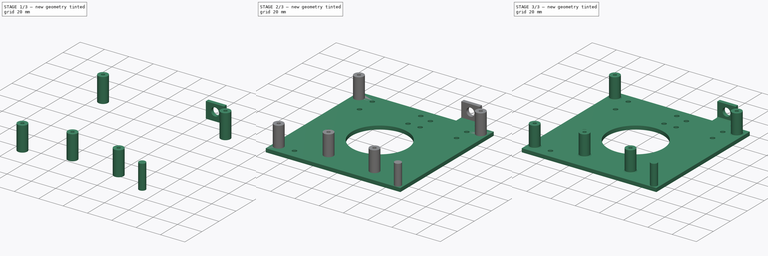
[diagram: build sequence overview — one tinted view per stage of 3, left to right]
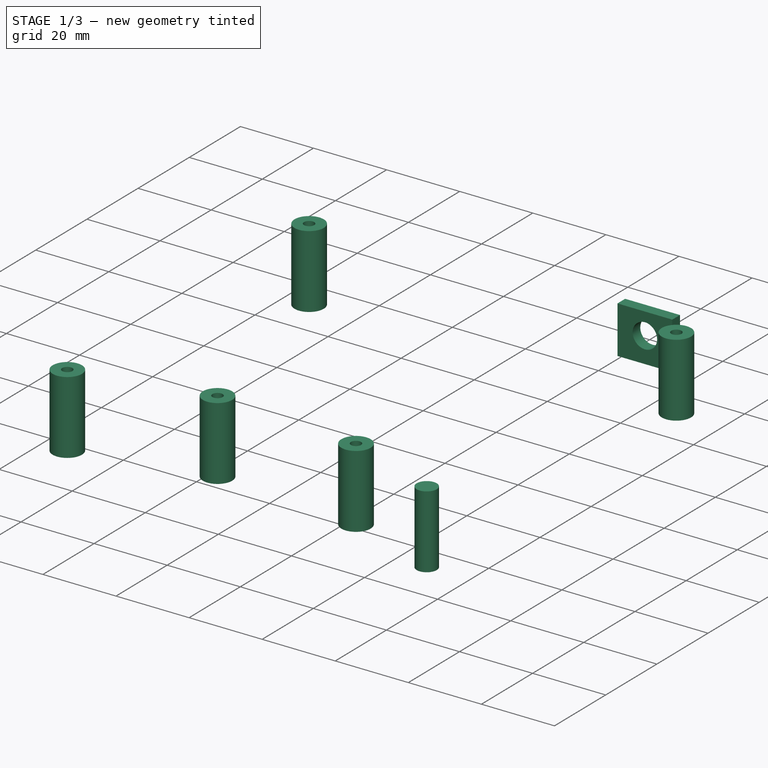
[diagram: stage 1 of 3 — iso view after this stage's code; geometry added in this stage tinted green]
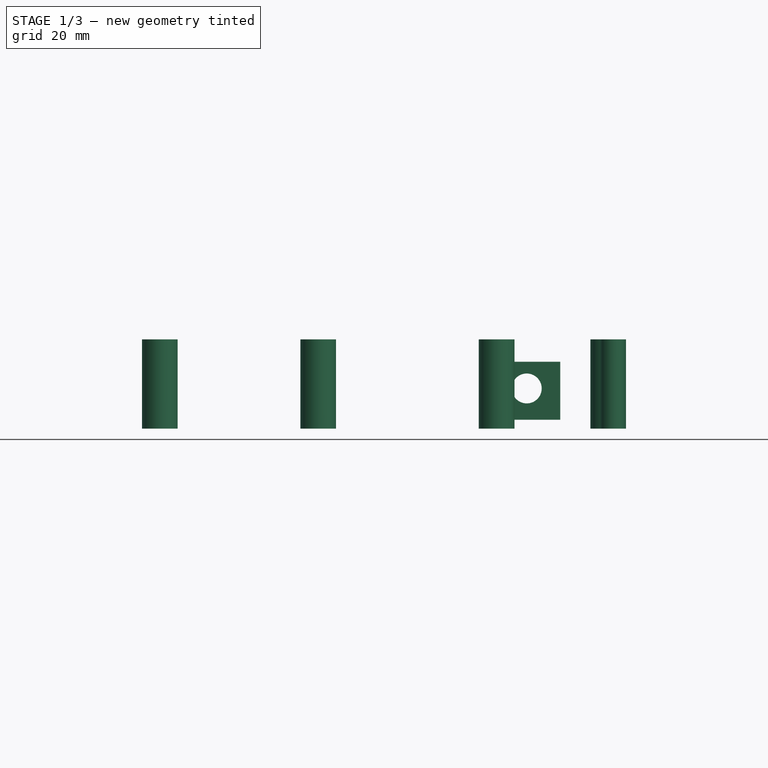
[diagram: stage 1 of 3 — front view after this stage's code; geometry added in this stage tinted green]
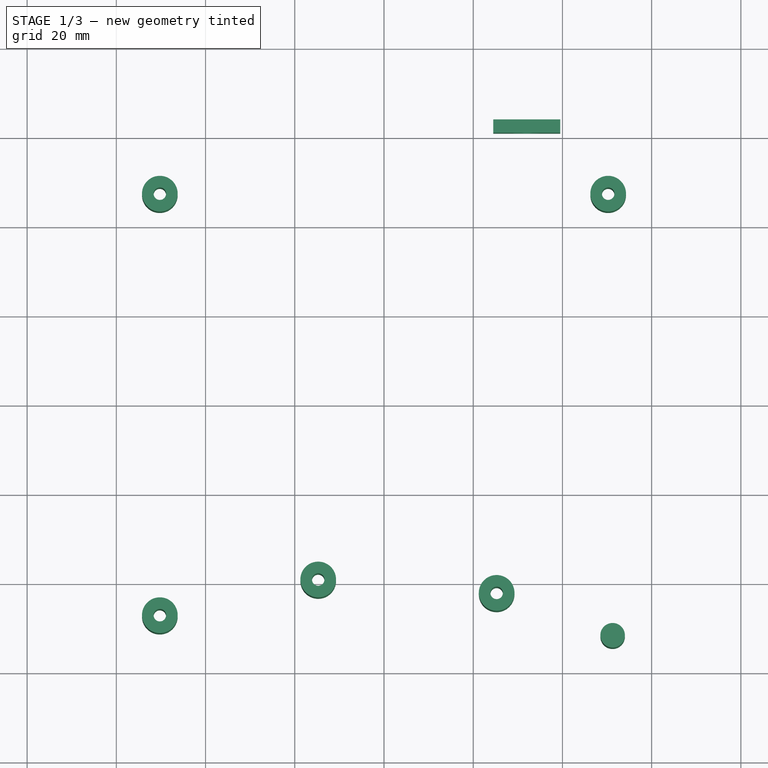
[diagram: stage 1 of 3 — top view after this stage's code; geometry added in this stage tinted green]
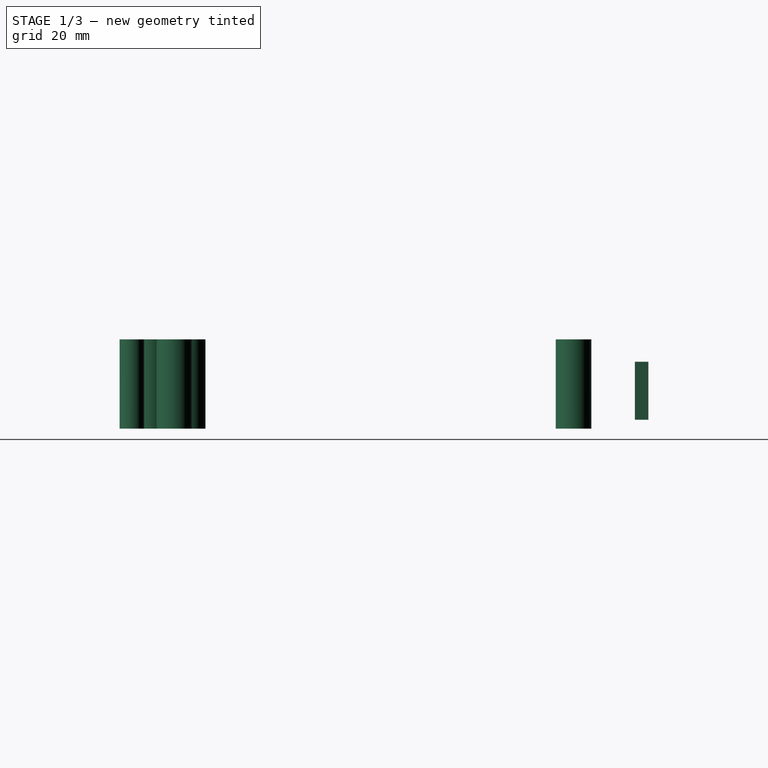
[diagram: stage 1 of 3 — right view after this stage's code; geometry added in this stage tinted green]
FCSTD DOCUMENT  (FreeCAD 0.16R6698 (Git))
Label: colibri-v2-frame-receiver-mnt
License: All rights reserved
LicenseURL: http://en.wikipedia.org/wiki/All_rights_reserved
objects: Sketcher::SketchObject×3, Part::Extrusion×3, Part::MultiFuse×1, Part::Chamfer×1
note: 8 computed .brp shape members not serialized (recipe doc carries the construction recipe); baked Part::Feature solids carry a one-line shape summary decoded from their .brp

FEATURE [Sketcher::SketchObject] Sketch001
  sketch-geometry (16):
    g0: LineSegment [constr] StartX=-50.25 StartY=47.25 StartZ=0 EndX=50.25 EndY=47.25 EndZ=0
    g1: LineSegment [constr] StartX=50.25 StartY=47.25 StartZ=0 EndX=50.25 EndY=-47.25 EndZ=0
    g2: LineSegment [constr] StartX=50.25 StartY=-47.25 StartZ=0 EndX=-50.25 EndY=-47.25 EndZ=0
    g3: LineSegment [constr] StartX=-50.25 StartY=-47.25 StartZ=0 EndX=-50.25 EndY=47.25 EndZ=0
    g4: GeomPoint [constr] X=50.25 Y=-47.25 Z=0
    g5: Circle CenterX=-50.25 CenterY=-47.25 CenterZ=0 NormalX=0 NormalY=0 NormalZ=1 Radius=1.4
    g6: Circle CenterX=50.25 CenterY=47.25 CenterZ=0 NormalX=0 NormalY=0 NormalZ=1 Radius=1.4
    g7: Circle CenterX=-50.25 CenterY=-47.25 CenterZ=0 NormalX=0 NormalY=0 NormalZ=1 Radius=4
    g8: Circle CenterX=50.25 CenterY=47.25 CenterZ=0 NormalX=0 NormalY=0 NormalZ=1 Radius=4
    g9: Circle CenterX=-50.25 CenterY=47.25 CenterZ=0 NormalX=0 NormalY=0 NormalZ=1 Radius=4
    g10: Circle CenterX=-50.25 CenterY=47.25 CenterZ=0 NormalX=0 NormalY=0 NormalZ=1 Radius=1.4
    g11: Circle CenterX=25.25 CenterY=-42.25 CenterZ=0 NormalX=0 NormalY=0 NormalZ=1 Radius=4
    g12: Circle CenterX=25.25 CenterY=-42.25 CenterZ=0 NormalX=0 NormalY=0 NormalZ=1 Radius=1.4
    g13: Circle CenterX=51.25 CenterY=-51.75 CenterZ=0 NormalX=0 NormalY=0 NormalZ=1 Radius=2.75
    g14: Circle CenterX=-14.75 CenterY=-39.25 CenterZ=0 NormalX=0 NormalY=0 NormalZ=1 Radius=4
    g15: Circle CenterX=-14.75 CenterY=-39.25 CenterZ=0 NormalX=0 NormalY=0 NormalZ=1 Radius=1.4
  constraints (39):
    c: Coincident(g0,g1)
    c: Coincident(g1,g2)
    c: Coincident(g3,g0)
    c: Horizontal(g0)
    c: Horizontal(g2)
    c: Vertical(g1)
    c: Vertical(g3)
    c: Symmetric(g0,g0,g-2)
    c: Symmetric(g0,g2,g-1)
    c: DistanceX(g0,g0) = 100.5
    c: PointOnObject(g4,g1)
    c: DistanceY(g4,g0) = 94.5
    c: Coincident(g5,g2)
    c: Coincident(g6,g0)
    c: Coincident(g7,g2)
    c: Coincident(g8,g0)
    c: Coincident(g4,g1)
    c: Coincident(g10,g9)
    c: Radius(g9) = 4
    c: Equal(g9,g8)
    c: Radius(g10) = 1.4
    c: Equal(g10,g6)
    c: Equal(g10,g5)
    c: Coincident(g3,g2)
    c: Coincident(g9,g0)
    c: Equal(g7,g9)
    c: Coincident(g12,g11)
    c: Equal(g12,g10)
    c: Equal(g11,g9)
    c: DistanceY(g2,g11) = 5
    c: DistanceX(g2,g11) = 75.5
    c: Radius(g13) = 2.75
    c: DistanceY(g13,g1) = 4.5
    c: DistanceX(g1,g13) = 1
    c: Coincident(g15,g14)
    c: Equal(g14,g9)
    c: Equal(g15,g10)
    c: DistanceX(g2,g14) = 35.5
    c: DistanceY(g2,g14) = 8
FEATURE [Part::Extrusion] Extrude001
  Base = -> Sketch001
  Dir = (0,0,20)
  Solid = true
FEATURE [Sketcher::SketchObject] Sketch002
  Placement = pos=(0,0,0) rot=(1,0,0;1.5708rad)
  sketch-geometry (7):
    g0: LineSegment StartX=-7.5 StartY=0 StartZ=0 EndX=7.5 EndY=0 EndZ=0
    g1: LineSegment StartX=7.5 StartY=0 StartZ=0 EndX=7.5 EndY=13 EndZ=0
    g2: LineSegment StartX=7.5 StartY=13 StartZ=0 EndX=-7.5 EndY=13 EndZ=0
    g3: LineSegment StartX=-7.5 StartY=13 StartZ=0 EndX=-7.5 EndY=0 EndZ=0
    g4: Circle CenterX=0 CenterY=7 CenterZ=0 NormalX=0 NormalY=0 NormalZ=1 Radius=3.35
    g5: LineSegment [constr] StartX=-7.5 StartY=0 StartZ=0 EndX=0 EndY=7 EndZ=0
    g6: LineSegment [constr] StartX=0 StartY=7 StartZ=0 EndX=7.5 EndY=0 EndZ=0
  constraints (19):
    c: Coincident(g0,g1)
    c: Coincident(g1,g2)
    c: Coincident(g2,g3)
    c: Coincident(g3,g0)
    c: Horizontal(g0)
    c: Horizontal(g2)
    c: Vertical(g1)
    c: Vertical(g3)
    c: PointOnObject(g0,g-1)
    c: DistanceX(g2,g2) = 15
    c: DistanceY(g1,g1) = 13
    c: Radius(g4) = 3.35
    c: Coincident(g0,g5)
    c: Coincident(g5,g4)
    c: Coincident(g5,g6)
    c: Coincident(g6,g0)
    c: Equal(g5,g6)
    c: DistanceY(g0,g4) = 7
    c: PointOnObject(g4,g-2)
FEATURE [Part::Extrusion] Extrude002
  Base = -> Sketch002
  Dir = (0,3,0)
  Placement = pos=(32,61,2) rot=(0,0,1;0rad)
  Solid = true
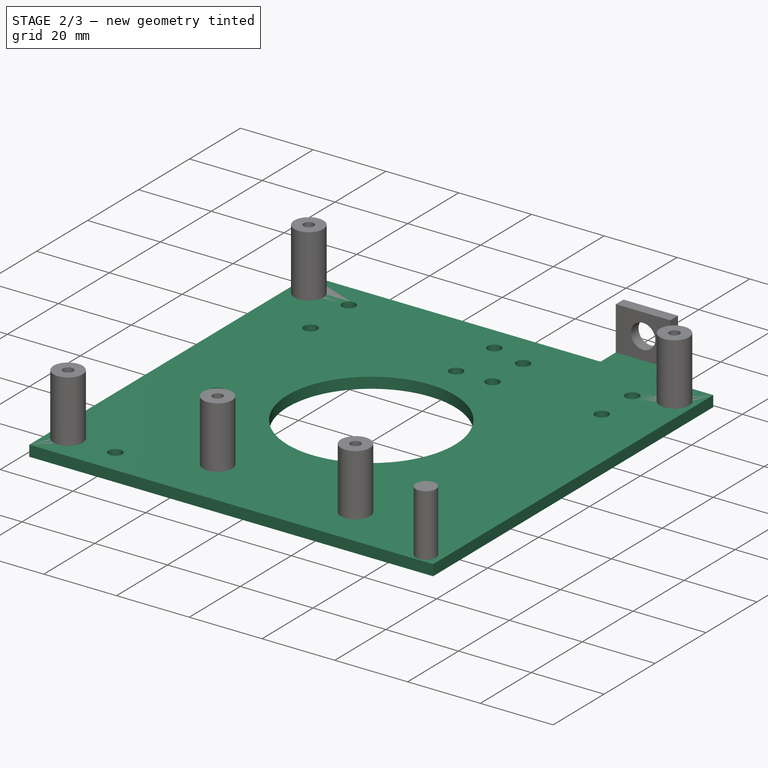
[diagram: stage 2 of 3 — iso view after this stage's code; geometry added in this stage tinted green]
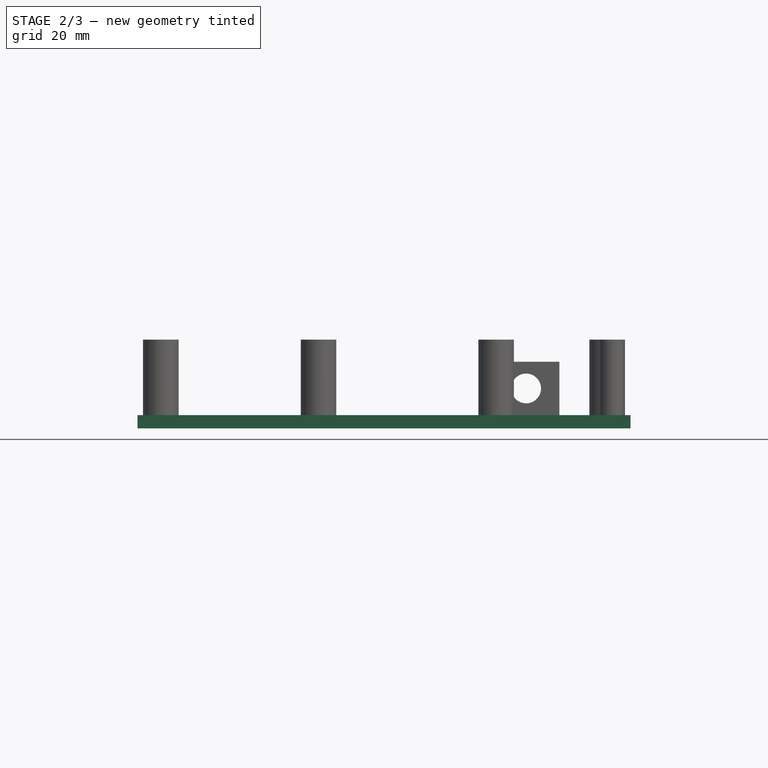
[diagram: stage 2 of 3 — front view after this stage's code; geometry added in this stage tinted green]
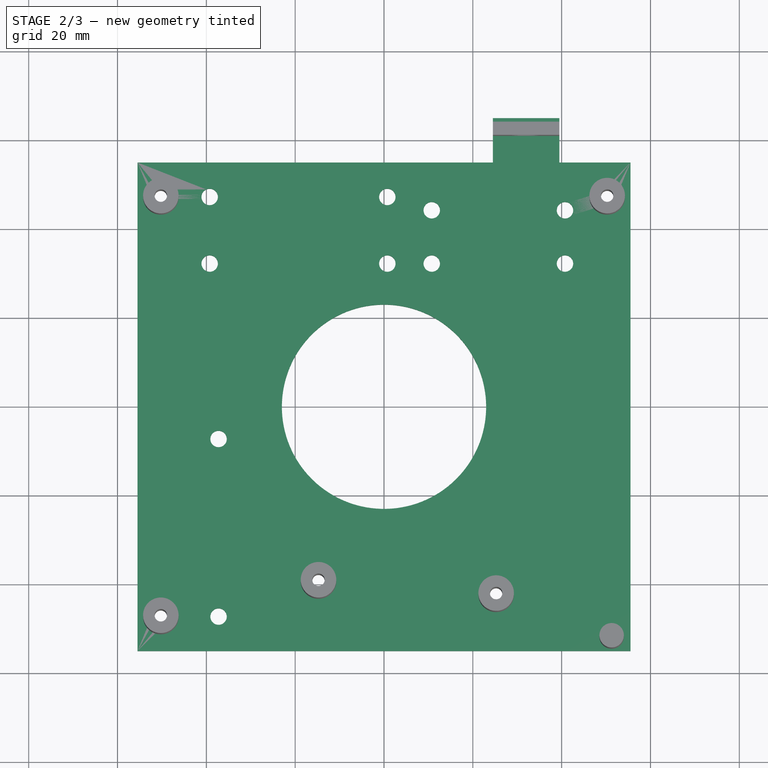
[diagram: stage 2 of 3 — top view after this stage's code; geometry added in this stage tinted green]
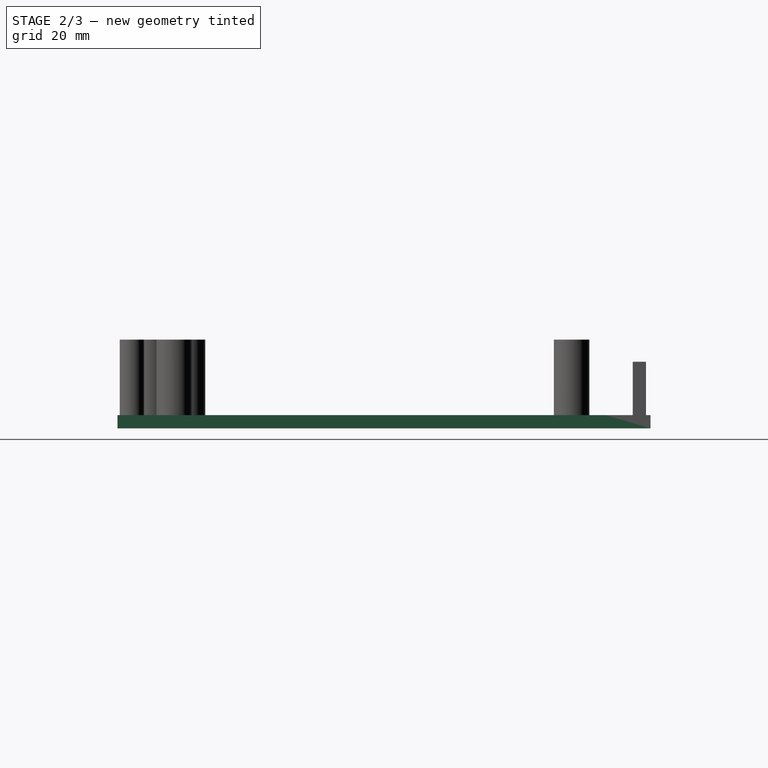
[diagram: stage 2 of 3 — right view after this stage's code; geometry added in this stage tinted green]
FEATURE [Sketcher::SketchObject] Sketch
  sketch-geometry (37):
    g0: LineSegment StartX=55.5 StartY=55 StartZ=0 EndX=55.5 EndY=-55 EndZ=0
    g1: LineSegment StartX=55.5 StartY=-55 StartZ=0 EndX=-55.5 EndY=-55 EndZ=0
    g2: LineSegment StartX=-55.5 StartY=-55 StartZ=0 EndX=-55.5 EndY=55 EndZ=0
    g3: LineSegment [constr] StartX=50.25 StartY=47.25 StartZ=0 EndX=50.25 EndY=-47.25 EndZ=0
    g4: LineSegment [constr] StartX=50.25 StartY=-47.25 StartZ=0 EndX=-50.25 EndY=-47.25 EndZ=0
    g5: LineSegment [constr] StartX=-50.25 StartY=-47.25 StartZ=0 EndX=-50.25 EndY=47.25 EndZ=0
    g6: Circle CenterX=-50.25 CenterY=-47.25 CenterZ=0 NormalX=0 NormalY=0 NormalZ=1 Radius=1.9
    g7: Circle CenterX=0 CenterY=0 CenterZ=0 NormalX=0 NormalY=0 NormalZ=1 Radius=23
    g8: LineSegment [constr] StartX=-39.25 StartY=47.25 StartZ=0 EndX=0.75 EndY=47.25 EndZ=0
    g9: LineSegment [constr] StartX=0.75 StartY=47.25 StartZ=0 EndX=0.75 EndY=32.25 EndZ=0
    g10: LineSegment [constr] StartX=0.75 StartY=32.25 StartZ=0 EndX=-39.25 EndY=32.25 EndZ=0
    g11: LineSegment [constr] StartX=-39.25 StartY=32.25 StartZ=0 EndX=-39.25 EndY=47.25 EndZ=0
    g12: LineSegment [constr] StartX=10.75 StartY=44.25 StartZ=0 EndX=40.75 EndY=44.25 EndZ=0
    g13: LineSegment [constr] StartX=40.75 StartY=44.25 StartZ=0 EndX=40.75 EndY=32.25 EndZ=0
    g14: LineSegment [constr] StartX=40.75 StartY=32.25 StartZ=0 EndX=10.75 EndY=32.25 EndZ=0
    g15: LineSegment [constr] StartX=10.75 StartY=32.25 StartZ=0 EndX=10.75 EndY=44.25 EndZ=0
    g16: Circle CenterX=-39.25 CenterY=47.25 CenterZ=0 NormalX=0 NormalY=0 NormalZ=1 Radius=1.85
    g17: Circle CenterX=0.75 CenterY=47.25 CenterZ=0 NormalX=0 NormalY=0 NormalZ=1 Radius=1.85
    g18: Circle CenterX=-39.25 CenterY=32.25 CenterZ=0 NormalX=0 NormalY=0 NormalZ=1 Radius=1.85
    g19: Circle CenterX=0.75 CenterY=32.25 CenterZ=0 NormalX=0 NormalY=0 NormalZ=1 Radius=1.85
    g20: Circle CenterX=10.75 CenterY=44.25 CenterZ=0 NormalX=0 NormalY=0 NormalZ=1 Radius=1.85
    g21: Circle CenterX=40.75 CenterY=44.25 CenterZ=0 NormalX=0 NormalY=0 NormalZ=1 Radius=1.85
    g22: Circle CenterX=10.75 CenterY=32.25 CenterZ=0 NormalX=0 NormalY=0 NormalZ=1 Radius=1.85
    g23: Circle CenterX=40.75 CenterY=32.25 CenterZ=0 NormalX=0 NormalY=0 NormalZ=1 Radius=1.85
    g24: LineSegment [constr] StartX=-50.25 StartY=47.25 StartZ=0 EndX=50.25 EndY=47.25 EndZ=0
    g25: Circle CenterX=50.25 CenterY=47.25 CenterZ=0 NormalX=0 NormalY=0 NormalZ=1 Radius=1.9
    g26: Circle CenterX=-50.25 CenterY=47.25 CenterZ=0 NormalX=0 NormalY=0 NormalZ=1 Radius=1.9
    g27: Circle CenterX=25.25 CenterY=-42.25 CenterZ=0 NormalX=0 NormalY=0 NormalZ=1 Radius=1.9
    g28: LineSegment StartX=-55.5 StartY=55 StartZ=0 EndX=24.5 EndY=55 EndZ=0
    g29: LineSegment StartX=24.5 StartY=55 StartZ=0 EndX=24.5 EndY=65 EndZ=0
    g30: LineSegment StartX=24.5 StartY=65 StartZ=0 EndX=39.5 EndY=65 EndZ=0
    g31: LineSegment StartX=39.5 StartY=65 StartZ=0 EndX=39.5 EndY=55 EndZ=0
    g32: LineSegment StartX=39.5 StartY=55 StartZ=0 EndX=55.5 EndY=55 EndZ=0
    g33: Circle CenterX=-14.75 CenterY=-39.25 CenterZ=0 NormalX=0 NormalY=0 NormalZ=1 Radius=1.9
    g34: LineSegment [constr] StartX=-37.25 StartY=-7.25 StartZ=0 EndX=-37.25 EndY=-47.25 EndZ=0
    g35: Circle CenterX=-37.25 CenterY=-7.25 CenterZ=0 NormalX=0 NormalY=0 NormalZ=1 Radius=1.85
    g36: Circle CenterX=-37.25 CenterY=-47.25 CenterZ=0 NormalX=0 NormalY=0 NormalZ=1 Radius=1.85
  constraints (98):
    c: Coincident(g0,g1)
    c: Coincident(g1,g2)
    c: Horizontal(g1)
    c: Vertical(g0)
    c: Vertical(g2)
    c: Symmetric(g2,g1,g-1)
    c: Symmetric(g1,g0,g-2)
    c: DistanceY(g2,g2) = 110
    c: DistanceX(g2,g0) = 111
    c: Coincident(g3,g4)
    c: Coincident(g4,g5)
    c: Vertical(g3)
    c: Vertical(g5)
    c: Symmetric(g5,g4,g-1)
    c: Coincident(g6,g4)
    c: Coincident(g7,g-1)
    c: Radius(g7) = 23
    c: Coincident(g8,g9)
    c: Coincident(g9,g10)
    c: Coincident(g10,g11)
    c: Coincident(g11,g8)
    c: Horizontal(g8)
    c: Horizontal(g10)
    c: Vertical(g9)
    c: Vertical(g11)
    c: Coincident(g12,g13)
    c: Coincident(g13,g14)
    c: Coincident(g14,g15)
    c: Coincident(g15,g12)
    c: Horizontal(g12)
    c: Horizontal(g14)
    c: Vertical(g13)
    c: Vertical(g15)
    c: DistanceY(g9,g9) = 15
    c: DistanceY(g15,g15) = 12
    c: DistanceX(g9,g14) = 10
    c: DistanceX(g10,g10) = 40
    c: DistanceX(g12,g12) = 30
    c: Coincident(g16,g8)
    c: Coincident(g17,g8)
    c: Coincident(g18,g10)
    c: Coincident(g19,g9)
    c: Equal(g16,g17)
    c: Equal(g16,g19)
    c: Equal(g16,g18)
    c: Coincident(g20,g12)
    c: Coincident(g21,g12)
    c: Coincident(g22,g14)
    c: Coincident(g23,g13)
    c: Radius(g22) = 1.85
    c: Equal(g22,g20)
    c: Equal(g22,g21)
    c: Equal(g22,g23)
    c: Coincident(g24,g3)
    c: Horizontal(g24)
    c: Symmetric(g4,g3,g-2)
    c: DistanceY(g3,g3) = 94.5
    c: Symmetric(g3,g3,g-1)
    c: Coincident(g24,g5)
    c: DistanceX(g4,g3) = 100.5
    c: Coincident(g25,g3)
    c: Radius(g26) = 1.9
    c: Equal(g26,g25)
    c: Equal(g26,g6)
    c: Coincident(g26,g5)
    c: DistanceY(g4,g27) = 5
    c: DistanceX(g4,g27) = 75.5
    c: Equal(g27,g26)
    c: DistanceX(g5,g8) = 11
    c: PointOnObject(g8,g24)
    c: Equal(g16,g22)
    c: Coincident(g28,g2)
    c: Horizontal(g28)
    c: Coincident(g28,g29)
    c: Coincident(g29,g30)
    c: Horizontal(g30)
    c: Coincident(g30,g31)
    c: Coincident(g31,g32)
    c: Coincident(g32,g0)
    c: Horizontal(g32)
    c: DistanceX(g28,g28) = 80
    c: Vertical(g31)
    c: Vertical(g29)
    c: PointOnObject(g31,g28)
    c: DistanceY(g31,g31) = 10
    c: Equal(g33,g26)
    c: DistanceX(g4,g33) = 35.5
    c: DistanceY(g4,g33) = 8
    c: PointOnObject(g14,g10)
    c: Vertical(g34)
    c: DistanceY(g34,g34) = 40
    c: PointOnObject(g34,g4)
    c: DistanceX(g4,g34) = 13
    c: Coincident(g35,g34)
    c: Coincident(g36,g34)
    c: Equal(g35,g36)
    c: Equal(g36,g16)
    c: DistanceX(g30,g30) = 15
FEATURE [Part::Extrusion] Extrude
  Base = -> Sketch
  Dir = (0,0,3)
  Solid = true
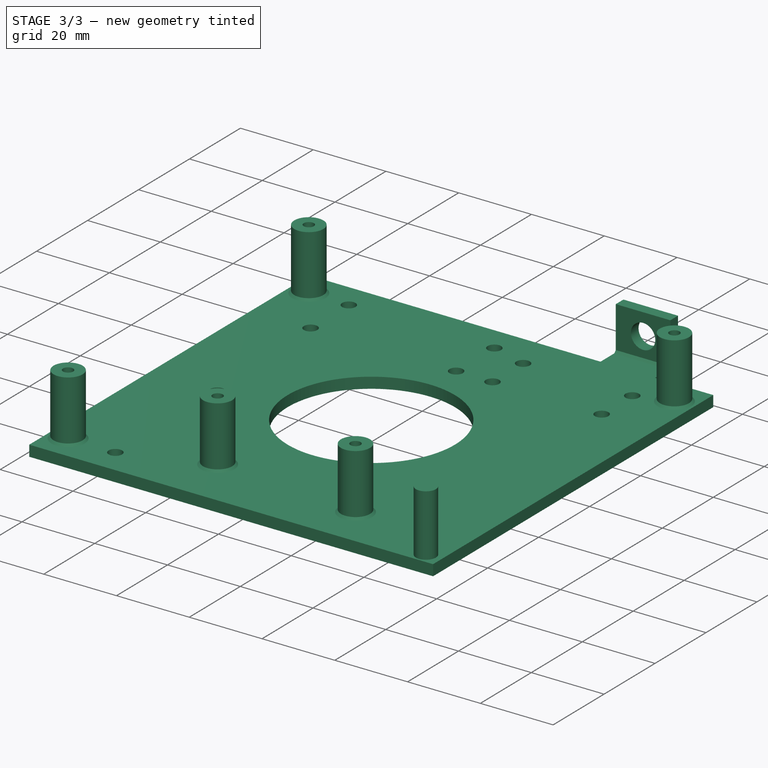
[diagram: stage 3 of 3 — iso view after this stage's code; geometry added in this stage tinted green]
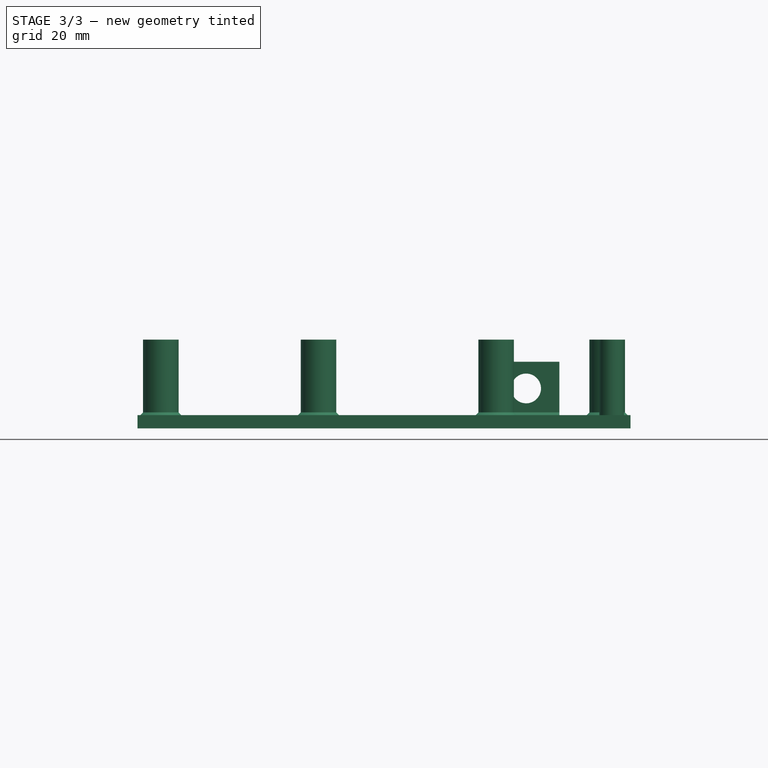
[diagram: stage 3 of 3 — front view after this stage's code; geometry added in this stage tinted green]
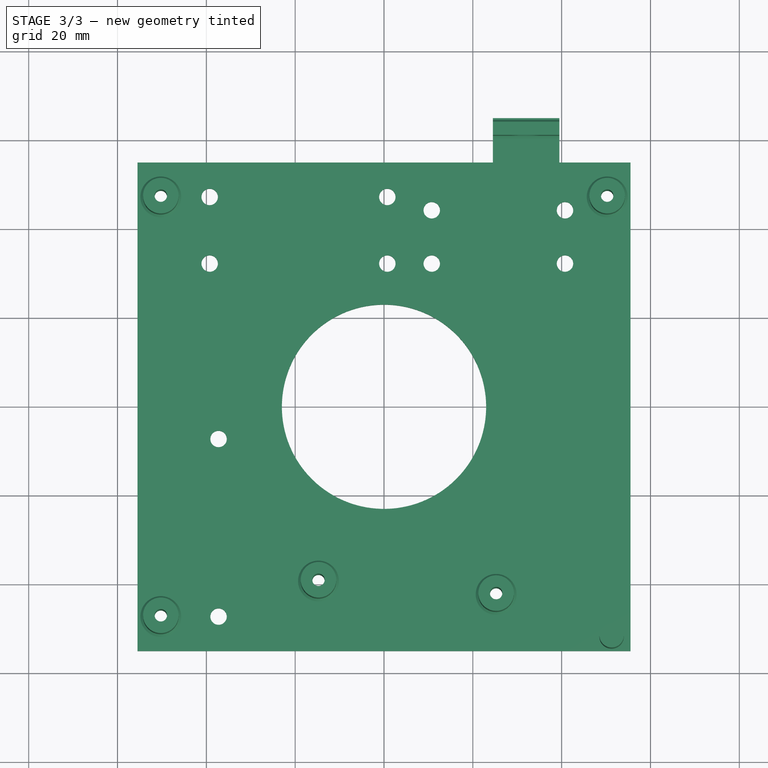
[diagram: stage 3 of 3 — top view after this stage's code; geometry added in this stage tinted green]
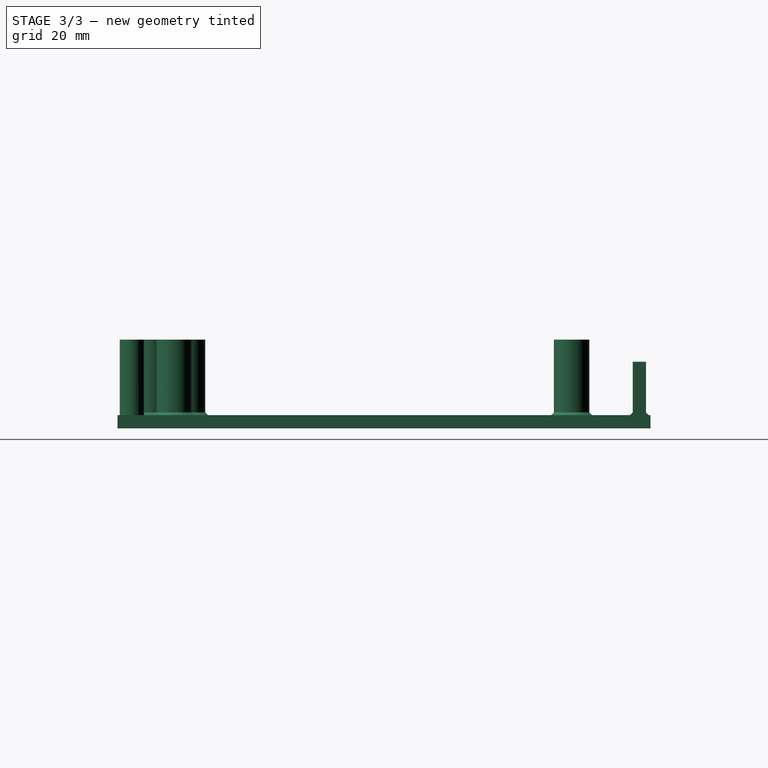
[diagram: stage 3 of 3 — right view after this stage's code; geometry added in this stage tinted green]
FEATURE [Part::MultiFuse] Fusion
  Shapes = -> [Extrude,Extrude001,Extrude002]
FEATURE [Part::Chamfer] Chamfer
  Base = -> Fusion
  Edges = 7 edges r=0.6: [Edge11,Edge13,Edge33,Edge35,Edge36,Edge42,Edge44]
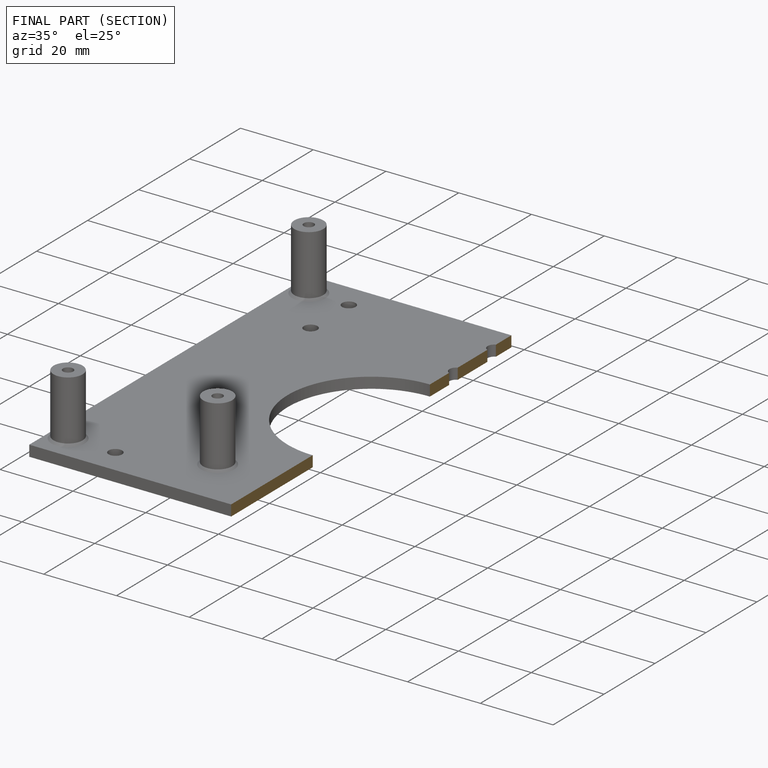
[diagram: finished part — half-section view (interior)]
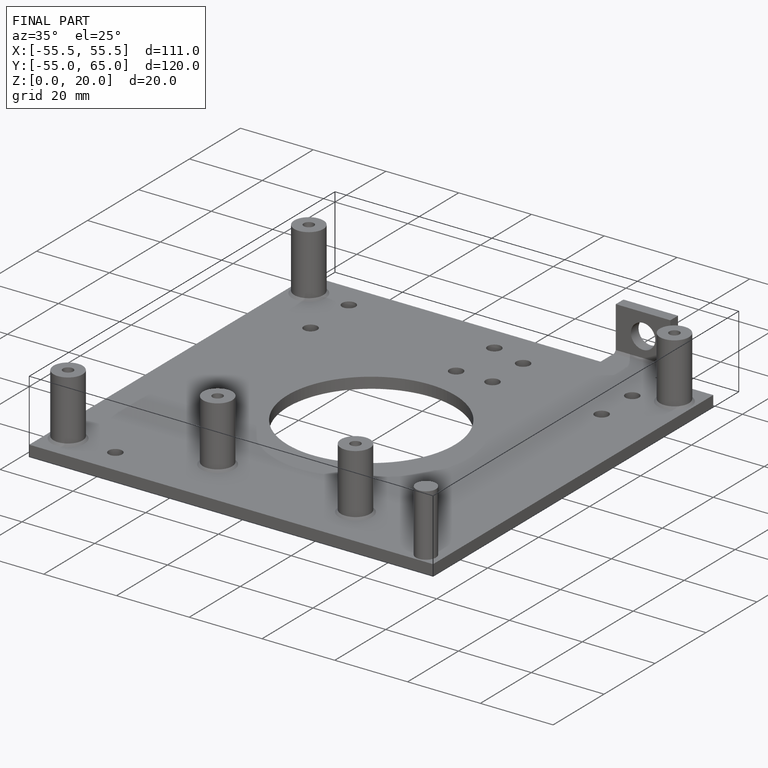
[diagram: finished part — iso view with bounding-box wireframe]
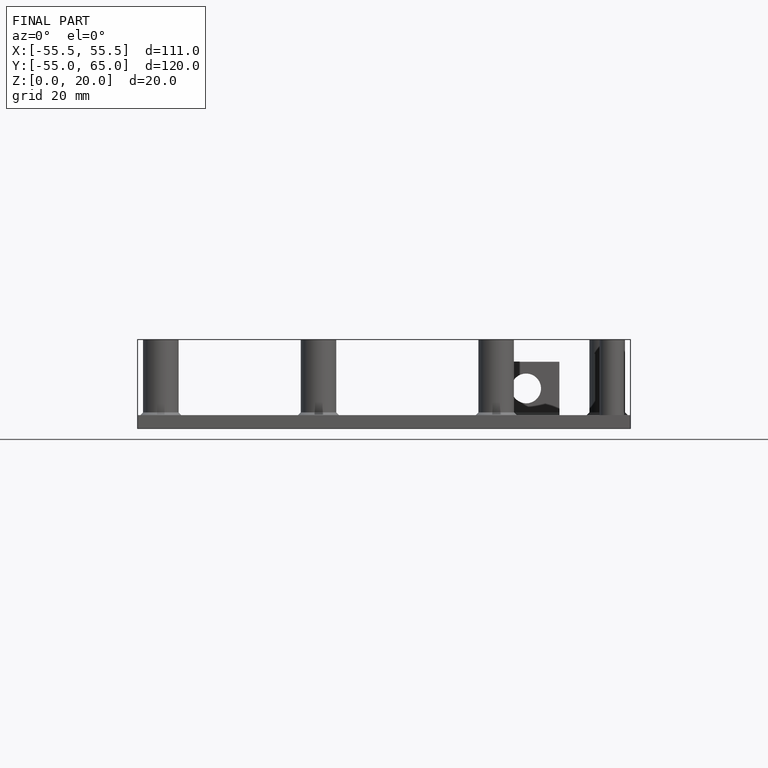
[diagram: finished part — front view with bounding-box wireframe]
